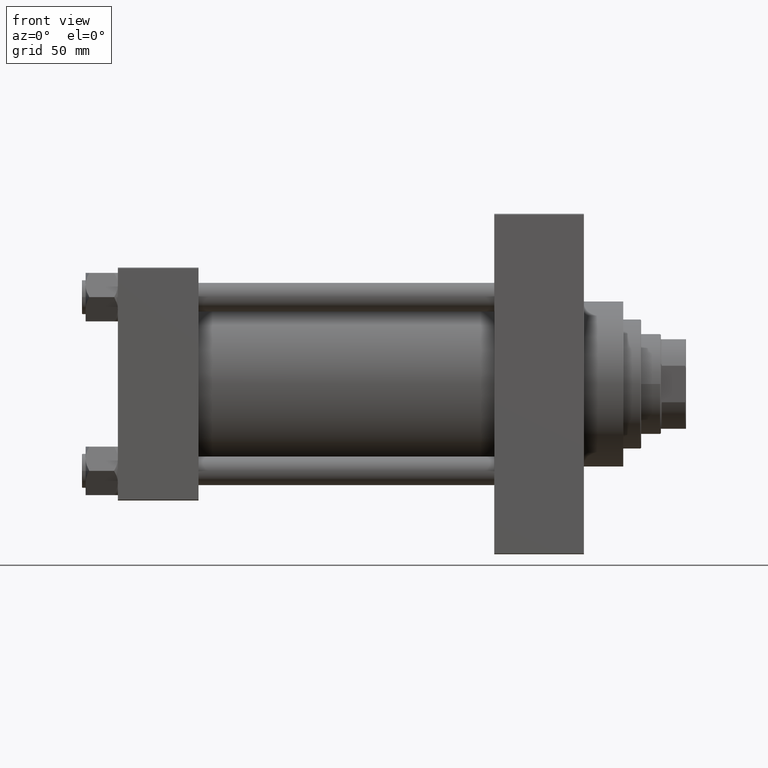
[diagram: clean part render]
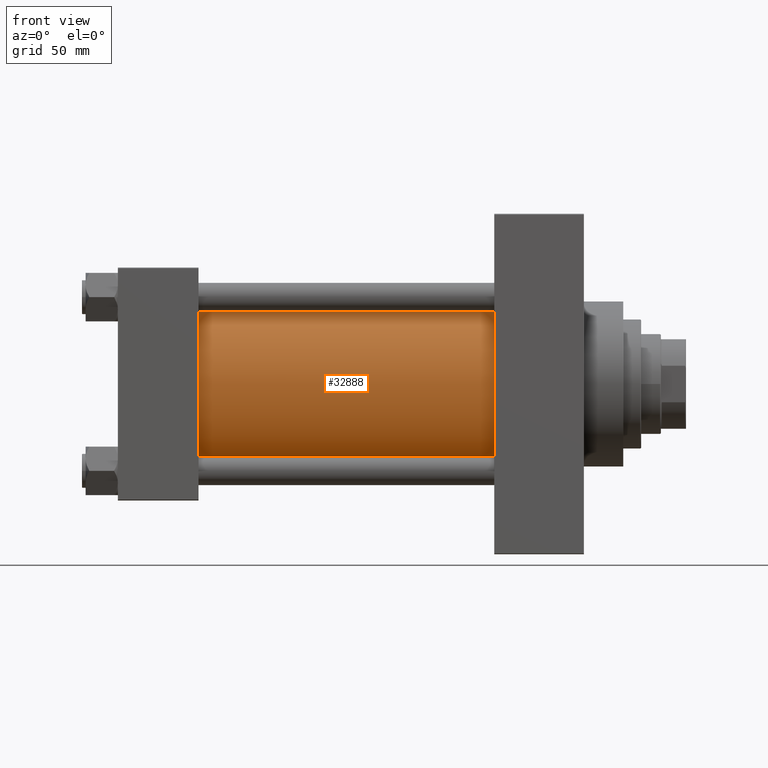
[diagram: same view with one face highlighted and labeled with its STEP entity id]
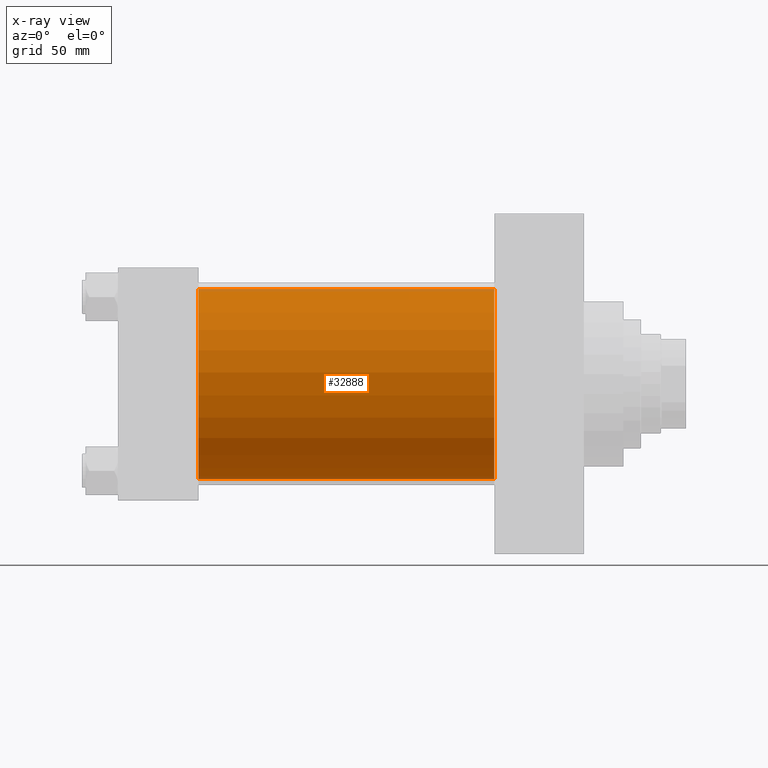
[diagram: x-ray of the same camera — body ghosted, the highlighted face saturated]
A machine part, front view. The second image highlights one B-rep face of the part: STEP entity #32888.
The next image is the same camera in x-ray: the body ghosted, the highlighted face saturated — about 3% of this face is hidden behind the body in this view.
In plain terms, the highlighted cylindrical surface (partial cylindrical patch) has radius 53 mm, axis along (-1, -0, -0).
Its self-contained STEP definition (entity closure, byte-faithful):
#885 = CARTESIAN_POINT ( 'NONE',  ( 210.0000000000000284, -2.602085213965210642E-15, 53.00000000000000711 ) ) ;
#1091 = CYLINDRICAL_SURFACE ( 'NONE', #40942, 53.00000000000000711 ) ;
#2237 = VECTOR ( 'NONE', #3877, 1000.000000000000000 ) ;
#2467 = DIRECTION ( 'NONE',  ( 0.000000000000000000, 0.000000000000000000, -1.000000000000000000 ) ) ;
#3427 = ORIENTED_EDGE ( 'NONE', *, *, #16942, .F. ) ;
#3877 = DIRECTION ( 'NONE',  ( -1.000000000000000000, -0.000000000000000000, -0.000000000000000000 ) ) ;
#4450 = ORIENTED_EDGE ( 'NONE', *, *, #27023, .F. ) ;
#5965 = CARTESIAN_POINT ( 'NONE',  ( 210.0000000000000284, -2.602085213965210642E-15, 53.00000000000000711 ) ) ;
#7209 = EDGE_CURVE ( 'NONE', #20629, #32599, #38530, .T. ) ;
#9775 = DIRECTION ( 'NONE',  ( 1.000000000000000000, -0.000000000000000000, 0.000000000000000000 ) ) ;
#12210 = DIRECTION ( 'NONE',  ( 0.000000000000000000, 0.000000000000000000, 1.000000000000000000 ) ) ;
#14272 = AXIS2_PLACEMENT_3D ( 'NONE', #46641, #35548, #2467 ) ;
#16142 = CARTESIAN_POINT ( 'NONE',  ( 210.0000000000000284, 3.888542821515762466E-15, -53.00000000000000711 ) ) ;
#16145 = EDGE_LOOP ( 'NONE', ( #4450, #3427, #32935, #46697 ) ) ;
#16330 = VERTEX_POINT ( 'NONE', #26221 ) ;
#16942 = EDGE_CURVE ( 'NONE', #20629, #16330, #45214, .T. ) ;
#17264 = CARTESIAN_POINT ( 'NONE',  ( 44.99999999999998579, -2.602085213965210642E-15, 0.000000000000000000 ) ) ;
#17903 = VECTOR ( 'NONE', #41914, 1000.000000000000000 ) ;
#19077 = VERTEX_POINT ( 'NONE', #21279 ) ;
#20629 = VERTEX_POINT ( 'NONE', #5965 ) ;
#20968 = EDGE_CURVE ( 'NONE', #32599, #19077, #42105, .T. ) ;
#21279 = CARTESIAN_POINT ( 'NONE',  ( 44.99999999999998579, 3.888542821515762466E-15, -53.00000000000000711 ) ) ;
#24244 = CARTESIAN_POINT ( 'NONE',  ( 44.99999999999998579, -2.602085213965210642E-15, 53.00000000000000711 ) ) ;
#26221 = CARTESIAN_POINT ( 'NONE',  ( 210.0000000000000284, 3.888542821515762466E-15, -53.00000000000000711 ) ) ;
#27023 = EDGE_CURVE ( 'NONE', #16330, #19077, #36955, .T. ) ;
#32599 = VERTEX_POINT ( 'NONE', #24244 ) ;
#32888 = ADVANCED_FACE ( 'NONE', ( #34422 ), #1091, .T. ) ;
#32935 = ORIENTED_EDGE ( 'NONE', *, *, #7209, .T. ) ;
#34177 = CARTESIAN_POINT ( 'NONE',  ( 210.0000000000000284, -2.602085213965210642E-15, 0.000000000000000000 ) ) ;
#34422 = FACE_OUTER_BOUND ( 'NONE', #16145, .T. ) ;
#35548 = DIRECTION ( 'NONE',  ( 1.000000000000000000, 0.000000000000000000, 0.000000000000000000 ) ) ;
#36955 = LINE ( 'NONE', #16142, #2237 ) ;
#38289 = AXIS2_PLACEMENT_3D ( 'NONE', #17264, #9775, #46919 ) ;
#38530 = LINE ( 'NONE', #885, #17903 ) ;
#40942 = AXIS2_PLACEMENT_3D ( 'NONE', #34177, #41175, #12210 ) ;
#41175 = DIRECTION ( 'NONE',  ( -1.000000000000000000, -0.000000000000000000, -0.000000000000000000 ) ) ;
#41914 = DIRECTION ( 'NONE',  ( -1.000000000000000000, -0.000000000000000000, -0.000000000000000000 ) ) ;
#42105 = CIRCLE ( 'NONE', #38289, 53.00000000000000711 ) ;
#45214 = CIRCLE ( 'NONE', #14272, 53.00000000000000711 ) ;
#46641 = CARTESIAN_POINT ( 'NONE',  ( 210.0000000000000284, -2.602085213965210642E-15, 0.000000000000000000 ) ) ;
#46697 = ORIENTED_EDGE ( 'NONE', *, *, #20968, .T. ) ;
#46919 = DIRECTION ( 'NONE',  ( 0.000000000000000000, 0.000000000000000000, 1.000000000000000000 ) ) ;